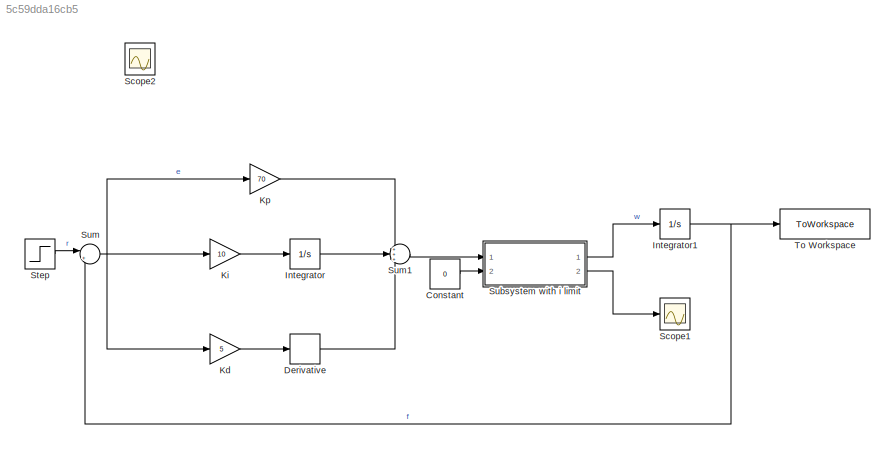
MODEL slx_5c59dda16cb5
KIND model
CONFIG AbsTol = auto
CONFIG EnableMultiTasking = off
CONFIG FixedStep = auto
CONFIG MaxStep = auto
CONFIG MinStep = auto
CONFIG RelTol = 1e-3
CONFIG SampleTimeConstraint = Unconstrained
CONFIG Solver = VariableStepAuto
CONFIG SolverName = VariableStepAuto
CONFIG StartTime = 0.0
CONFIG StopTime = 10.0
BLOCK [Constant] Constant
  Value = 0
BLOCK [Derivative] Derivative
BLOCK [Integrator] Integrator
  Ports = [1, 1]
BLOCK [Integrator] Integrator1
  Ports = [1, 1]
BLOCK [Gain] Kd
  Gain = 5
BLOCK [Gain] Ki
  Gain = 10
BLOCK [Gain] Kp
  Gain = 70
BLOCK [Scope] Scope1
  Floating = off
  NumInputPorts = 1
  Ports = [1]
  ScopeSpecificationString = Simulink.scopes.TimeScopeBlockCfg('CurrentConfiguration', extmgr.ConfigurationSet(extmgr.Configuration('Core','General UI',true),extmgr.Configuration('Core','Source UI',true),extmgr.Configuration('Sources','WiredSimulink',true,'DataLoggingVariableName','ScopeData1'),extmgr.Configuration('Visuals','Time Domain',true,'SerializedDisplays',{struct('MinYLimReal','-32.61623','MaxYLimReal','44.15708','YL...<+1418ch>
BLOCK [Scope] Scope2
  Floating = off
  IOType = viewer
  NumInputPorts = 1
  Ports = []
  ScopeSpecificationString = Simulink.scopes.TimeScopeBlockCfg('CurrentConfiguration', extmgr.ConfigurationSet(extmgr.Configuration('Core','General UI',true),extmgr.Configuration('Core','Source UI',true),extmgr.Configuration('Sources','WiredSimulink',true,'DataLoggingVariableName','ScopeData1'),extmgr.Configuration('Visuals','Time Domain',true,'SerializedDisplays',{struct('MinYLimReal','-0.2128','MaxYLimReal','1.91519','YLabe...<+1462ch>
BLOCK [Step] Step
  SampleTime = 0
  Time = 0
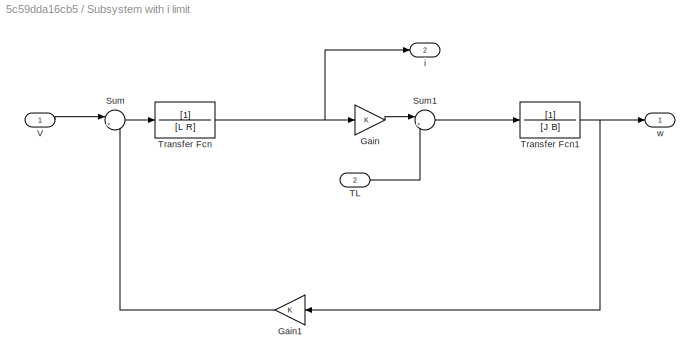
BLOCK [SubSystem] Subsystem with i limit
  Ports = [2, 2]
  RequestExecContextInheritance = off
BLOCK [Gain] Subsystem with i limit/Gain
  Gain = K
BLOCK [Gain] Subsystem with i limit/Gain1
  Gain = K
BLOCK [Sum] Subsystem with i limit/Sum
  Inputs = |+-
  Ports = [2, 1]
BLOCK [Sum] Subsystem with i limit/Sum1
  Inputs = |++
  Ports = [2, 1]
BLOCK [Inport] Subsystem with i limit/TL
  Port = 2
BLOCK [TransferFcn] Subsystem with i limit/Transfer Fcn
  Denominator = [L R]
BLOCK [TransferFcn] Subsystem with i limit/Transfer Fcn1
  Denominator = [J B]
BLOCK [Inport] Subsystem with i limit/V
BLOCK [Outport] Subsystem with i limit/i
  Port = 2
  VectorParamsAs1DForOutWhenUnconnected = off
BLOCK [Outport] Subsystem with i limit/w
  VectorParamsAs1DForOutWhenUnconnected = off
BLOCK [Sum] Sum
  Inputs = |+-
  Ports = [2, 1]
BLOCK [Sum] Sum1
  Inputs = +++
  Ports = [3, 1]
BLOCK [ToWorkspace] To Workspace
  FixptAsFi = on
  MaxDataPoints = inf
  Ports = [1]
  SampleTime = -1
  SaveFormat = Timeseries
  VariableName = y
LINE Constant:1 -> Subsystem with i limit:2
LINE Derivative:1 -> Sum1:3
NET Integrator1:1 -> Sum:2, To Workspace:1
LINE Integrator:1 -> Sum1:2
LINE Kd:1 -> Derivative:1
LINE Ki:1 -> Integrator:1
LINE Kp:1 -> Sum1:1
LINE Step:1 -> Sum:1
LINE Subsystem with i limit/Gain1:1 -> Subsystem with i limit/Sum:2
LINE Subsystem with i limit/Gain:1 -> Subsystem with i limit/Sum1:1
LINE Subsystem with i limit/Sum1:1 -> Subsystem with i limit/Transfer Fcn1:1
LINE Subsystem with i limit/Sum:1 -> Subsystem with i limit/Transfer Fcn:1
LINE Subsystem with i limit/TL:1 -> Subsystem with i limit/Sum1:2
NET Subsystem with i limit/Transfer Fcn1:1 -> Subsystem with i limit/Gain1:1, Subsystem with i limit/w:1
NET Subsystem with i limit/Transfer Fcn:1 -> Subsystem with i limit/Gain:1, Subsystem with i limit/i:1
LINE Subsystem with i limit/V:1 -> Subsystem with i limit/Sum:1
LINE Subsystem with i limit:1 -> Integrator1:1
LINE Subsystem with i limit:2 -> Scope1:1
LINE Sum1:1 -> Subsystem with i limit:1
NET Sum:1 -> Kd:1, Ki:1, Kp:1
note: NET lines group one-source signal fan-out (src -> all destinations, sorted); 1:1 wires keep LINE
